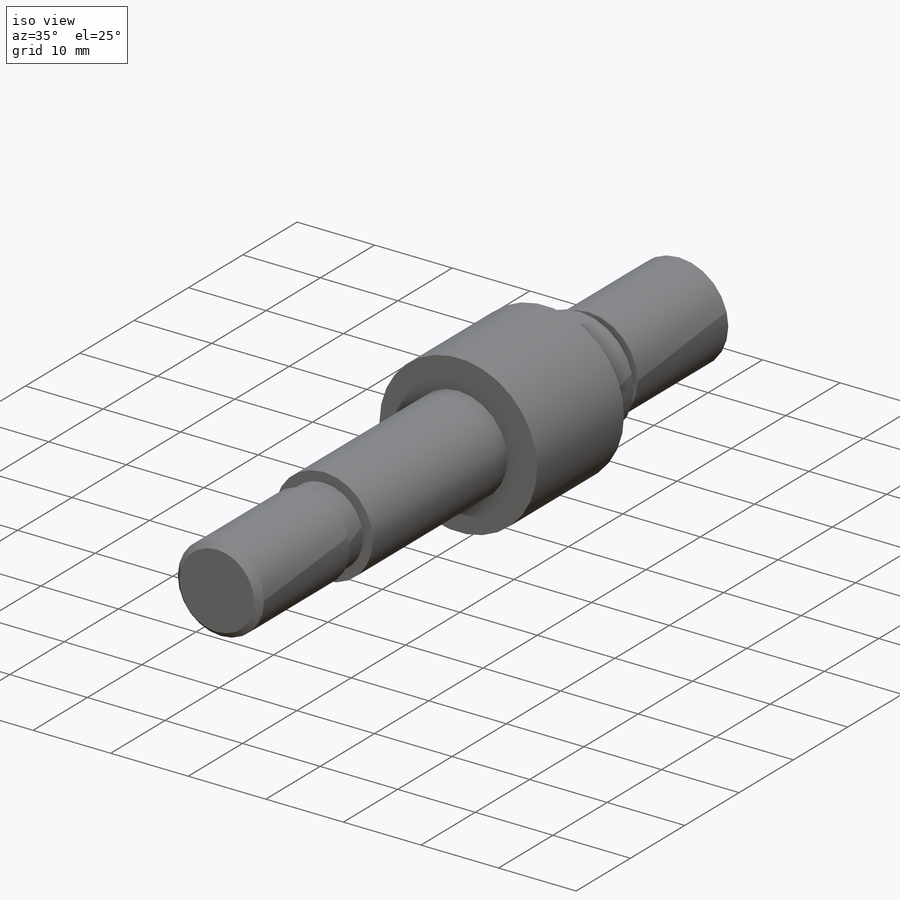
[diagram: iso view]
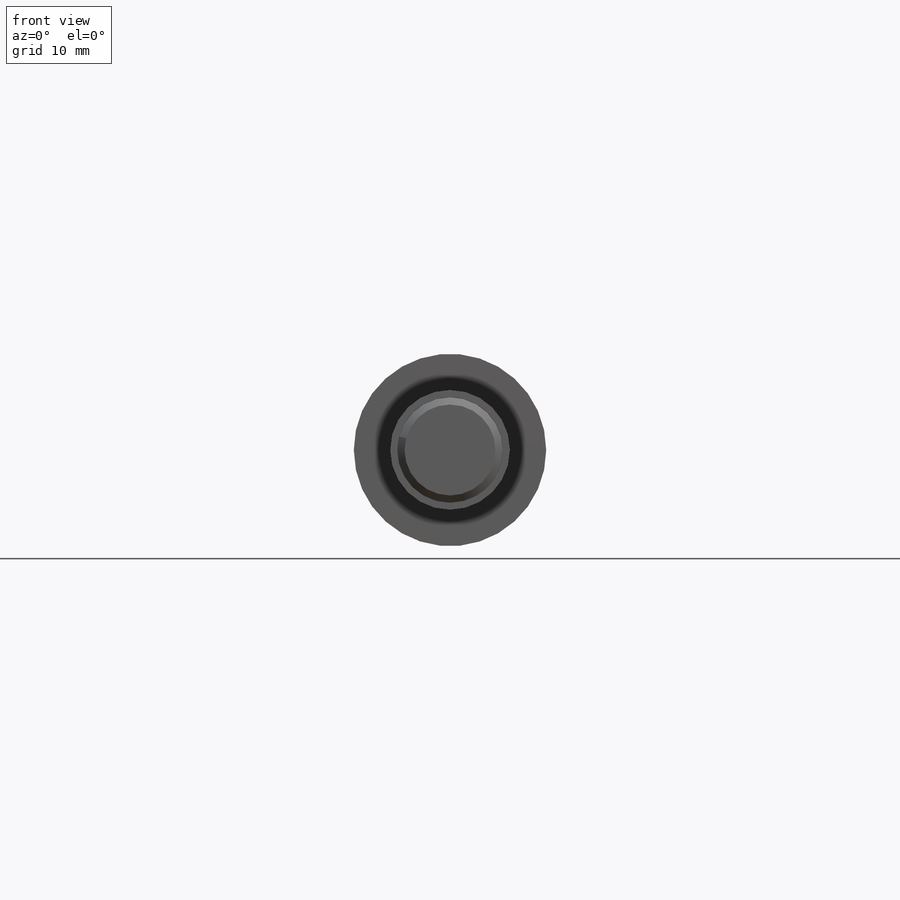
[diagram: front view]
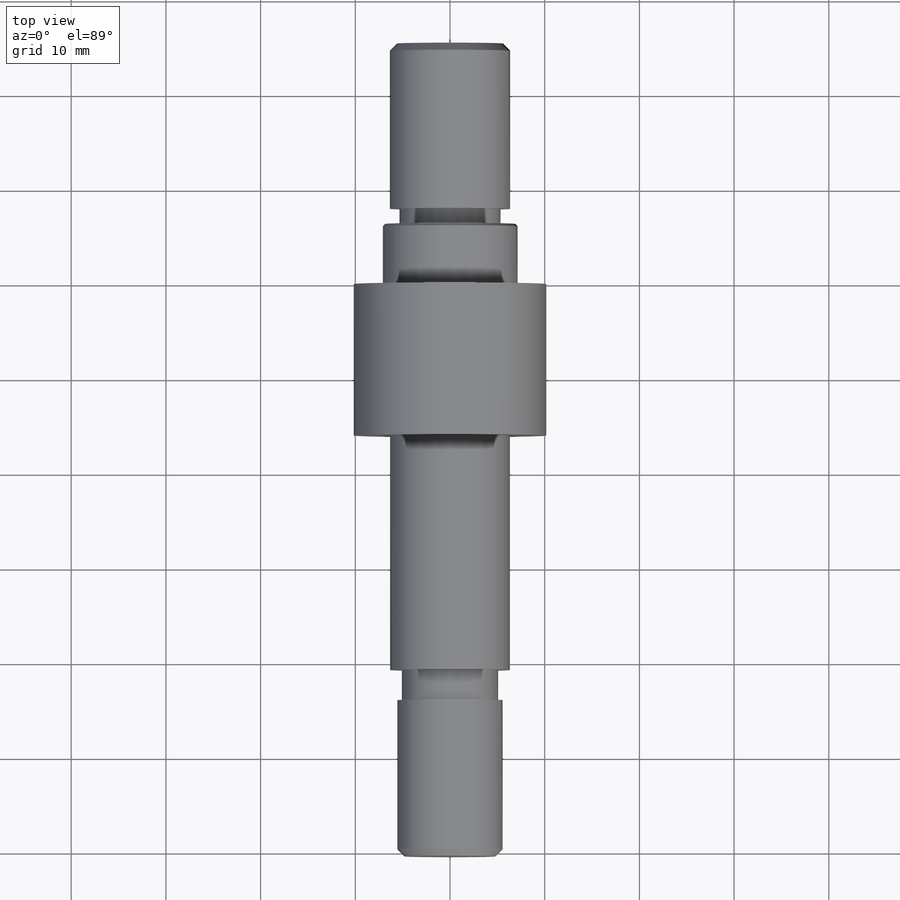
[diagram: top view]
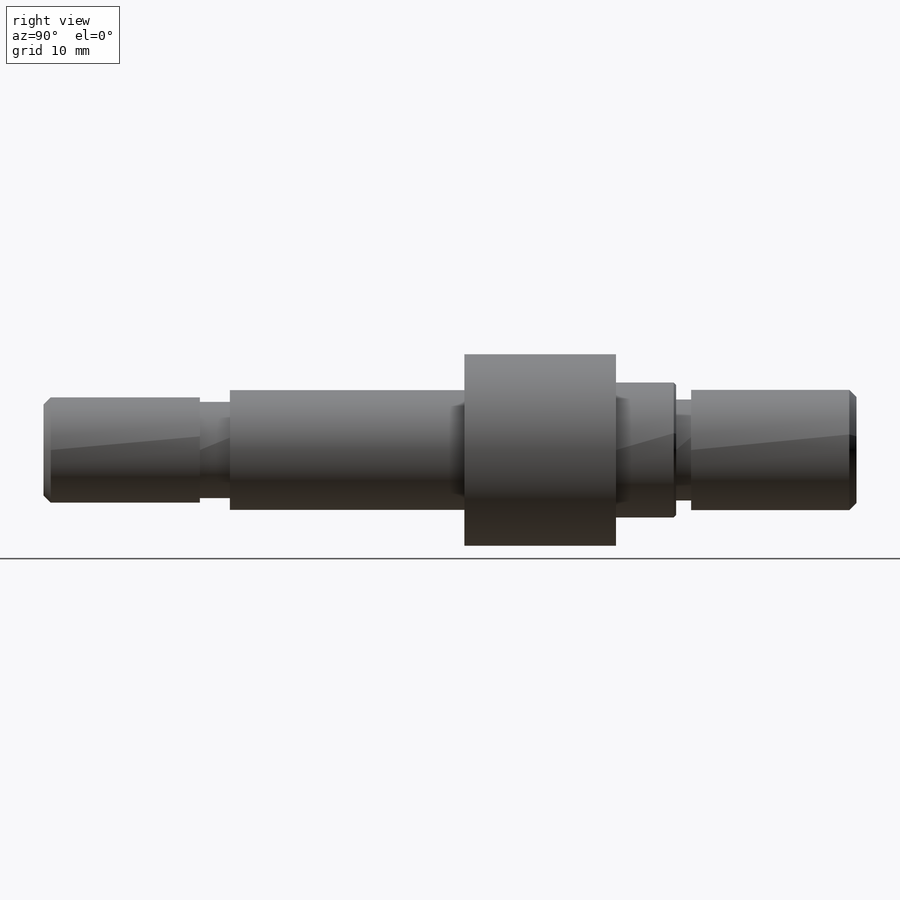
[diagram: right view]
SOLIDWORKS PART (.sldprt)
format: sldprt  version: not decoded by parser v0  size: 339,968 bytes
history: native  units: mm
features: sketch x7, extrude x4, chamfer x2, thread x2, cut_revolve x2, material x1, cut_extrude x1 (+13 scaffold rows collapsed)
feature tree (32):
  scaffold x13  (default folders/planes/origin — collapsed)
  material  "AISI 1020 Steel, Cold Rolled"
  sketch  "Sketch1"  dims[D1=14.2875mm]
  extrude  "Boss-Extrude1"  Depth=6.35mm
  sketch  "Sketch2"  dims[D1=20.32mm]
  extrude  "Boss-Extrude2"  Depth=16.002mm
  chamfer  "Chamfer1"  Distance=0.254mm Angle=45deg
  sketch  "Sketch3"  dims[D1=12.6365mm]
  extrude  "Boss-Extrude3"  Depth=44.45mm
  sketch  "Sketch5"  dims[D1=12.7mm]
  extrude  "Boss-Extrude4"  [1 undecoded]
  thread  "Cosmetic Thread2"  Diameter=17.4625mm  [1 undecoded]
  sketch  "Sketch11"  dims[D1=11.1252mm]
  cut_extrude  "Cut-Extrude2"  [1 undecoded]
  thread  "Cosmetic Thread3"  Diameter=9.6012mm  [1 undecoded]
  chamfer  "Chamfer2"  Distance=0.762mm Angle=45deg
  sketch  "Sketch8"  dims[D1=6.35mm D2=1.016mm D3=1.5875mm]
  cut_revolve  "Cut-Revolve3"  Angle=360deg
  sketch  "Sketch10"  dims[c1.D1=16.51mm c1.D2=6.35mm c1.D3=1.27mm c1.D4=3.175mm c2.D1=16.51mm]
  cut_revolve  "Cut-Revolve4"  Angle=360deg
decode coverage: 16 of 18 modeling features carry decoded parameters
note: 4 parameter values undecoded
note: suppression state not decoded; provenance and decode notes live in map.json
